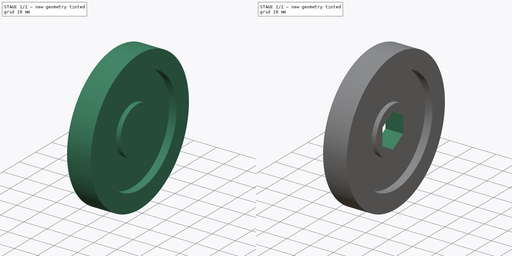
[diagram: build sequence overview — one tinted view per stage of 2, left to right]
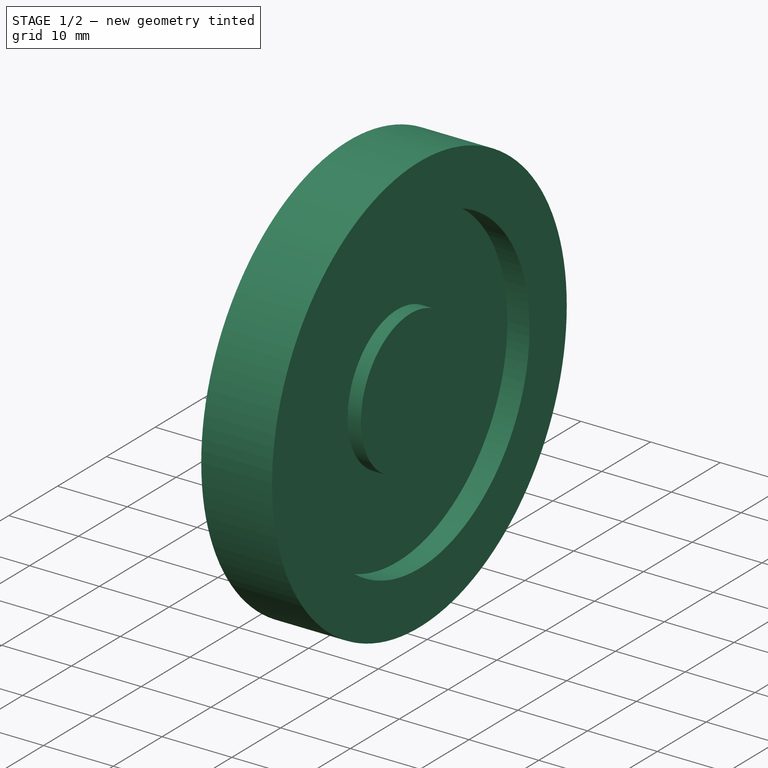
[diagram: stage 1 of 2 — iso view after this stage's code; geometry added in this stage tinted green]
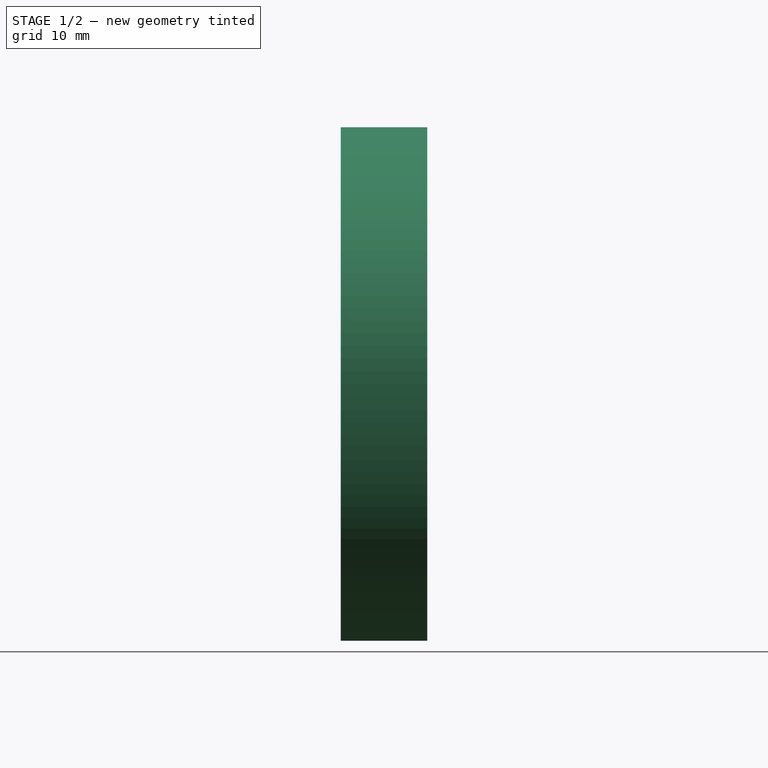
[diagram: stage 1 of 2 — front view after this stage's code; geometry added in this stage tinted green]
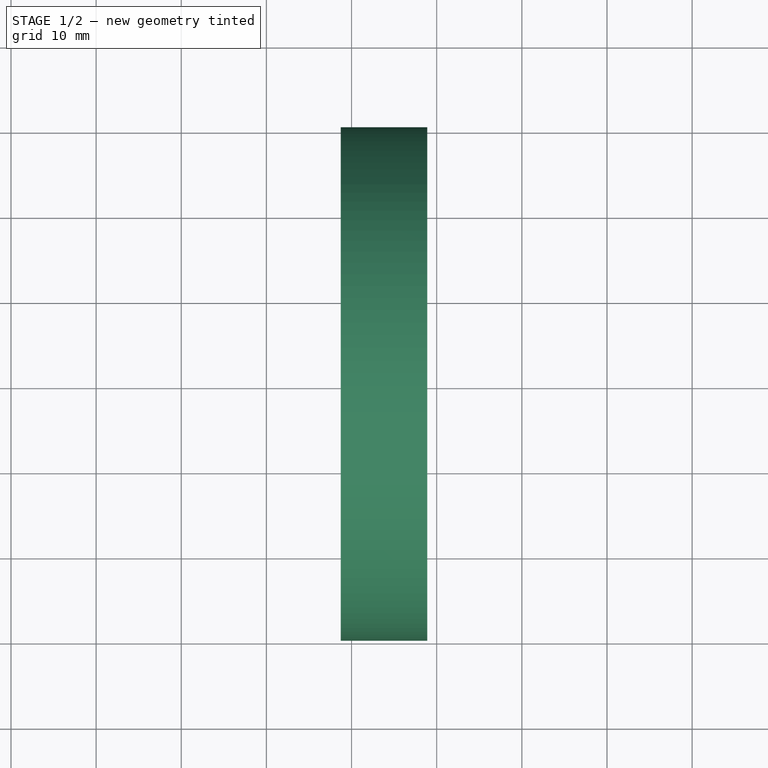
[diagram: stage 1 of 2 — top view after this stage's code; geometry added in this stage tinted green]
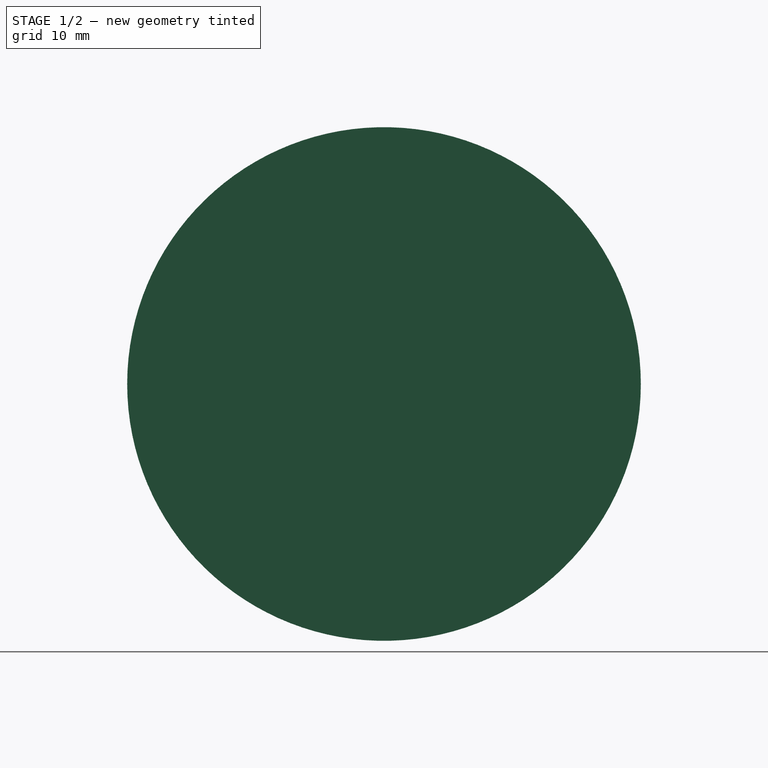
[diagram: stage 1 of 2 — right view after this stage's code; geometry added in this stage tinted green]
FCSTD DOCUMENT  (FreeCAD 0.17RUnknown)
Label: T40P-243BG-HS4
License: All rights reserved
LicenseURL: http://en.wikipedia.org/wiki/All_rights_reserved
objects: Sketcher::SketchObject×2, PartDesign::Revolution×1, PartDesign::Pocket×1, PartDesign::Body×1
note: 7 computed .brp shape members not serialized (recipe doc carries the construction recipe); baked Part::Feature solids carry a one-line shape summary decoded from their .brp

FEATURE [Sketcher::SketchObject] Sketch
  MapMode = 5
  Support = -> [XY_Plane]
  sketch-geometry (12):
    g0: LineSegment StartX=0 StartY=0 StartZ=0 EndX=0 EndY=10.16 EndZ=0
    g1: LineSegment StartX=0 StartY=10.16 StartZ=0 EndX=1.905 EndY=10.16 EndZ=0
    g2: LineSegment StartX=1.905 StartY=10.16 StartZ=0 EndX=1.905 EndY=22.5425 EndZ=0
    g3: LineSegment StartX=1.905 StartY=22.5425 StartZ=0 EndX=-1.27 EndY=22.5425 EndZ=0
    g4: LineSegment StartX=-1.27 StartY=22.5425 StartZ=0 EndX=-1.27 EndY=30.1625 EndZ=0
    g5: LineSegment StartX=-1.27 StartY=30.1625 StartZ=0 EndX=8.89 EndY=30.1625 EndZ=0
    g6: LineSegment StartX=8.89 StartY=30.1625 StartZ=0 EndX=8.89 EndY=22.5425 EndZ=0
    g7: LineSegment StartX=8.89 StartY=22.5425 StartZ=0 EndX=5.715 EndY=22.5425 EndZ=0
    g8: LineSegment StartX=5.715 StartY=22.5425 StartZ=0 EndX=5.715 EndY=10.16 EndZ=0
    g9: LineSegment StartX=5.715 StartY=10.16 StartZ=0 EndX=7.62 EndY=10.16 EndZ=0
    g10: LineSegment StartX=7.62 StartY=10.16 StartZ=0 EndX=7.62 EndY=0 EndZ=0
    g11: LineSegment StartX=7.62 StartY=0 StartZ=0 EndX=0 EndY=0 EndZ=0
  constraints (35):
    c: Coincident(g-1,g0)
    c: Coincident(g0,g1)
    c: Coincident(g1,g2)
    c: Vertical(g2)
    c: Coincident(g2,g3)
    c: Coincident(g3,g4)
    c: Coincident(g4,g5)
    c: Horizontal(g5)
    c: Coincident(g5,g6)
    c: Vertical(g6)
    c: Coincident(g6,g7)
    c: Coincident(g7,g8)
    c: Vertical(g8)
    c: Coincident(g8,g9)
    c: Coincident(g9,g10)
    c: Coincident(g10,g11)
    c: Coincident(g11,g0)
    c: Horizontal(g11)
    c: DistanceY(g0,g0) = 10.16
    c: Equal(g10,g0)
    c: Horizontal(g1)
    c: Vertical(g0)
    c: DistanceY(g-1,g4) = 30.1625
    c: Horizontal(g3)
    c: DistanceY(g-1,g3) = 22.5425
    c: Horizontal(g9)
    c: Horizontal(g7)
    c: Equal(g2,g8)
    c: Vertical(g10)
    c: Equal(g9,g1)
    c: DistanceX(g5,g5) = 10.16
    c: DistanceX(g2,g7) = 3.81
    c: DistanceX(g11,g11) = 7.62
    c: Vertical(g4)
    c: Equal(g3,g7)
FEATURE [PartDesign::Revolution] Revolution
  Angle = 360
  Axis = (1,0,0)
  Base = (0,0,0)
  Profile = -> Sketch
  ReferenceAxis = -> Sketch [H_Axis]
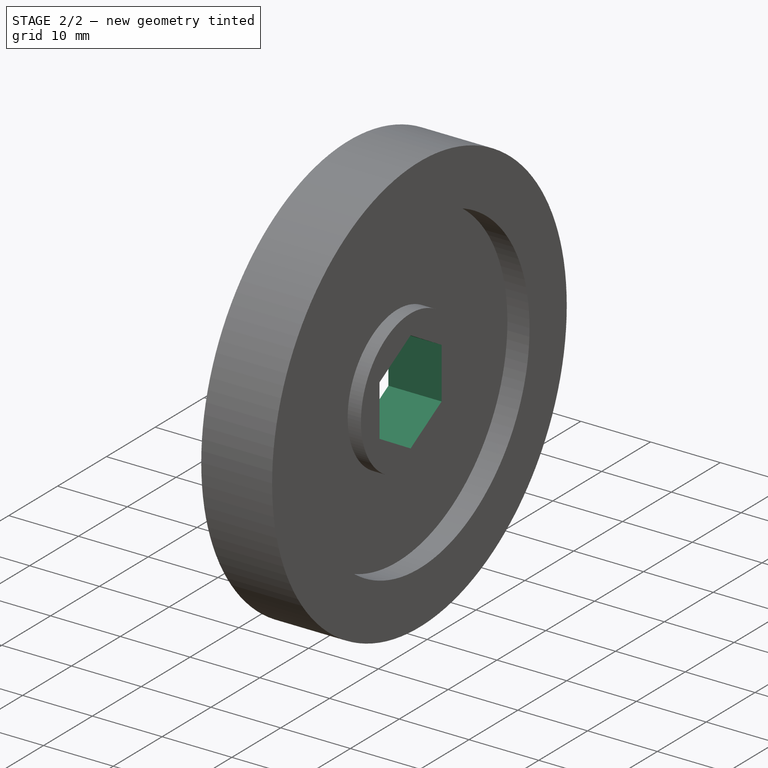
[diagram: stage 2 of 2 — iso view after this stage's code; geometry added in this stage tinted green]
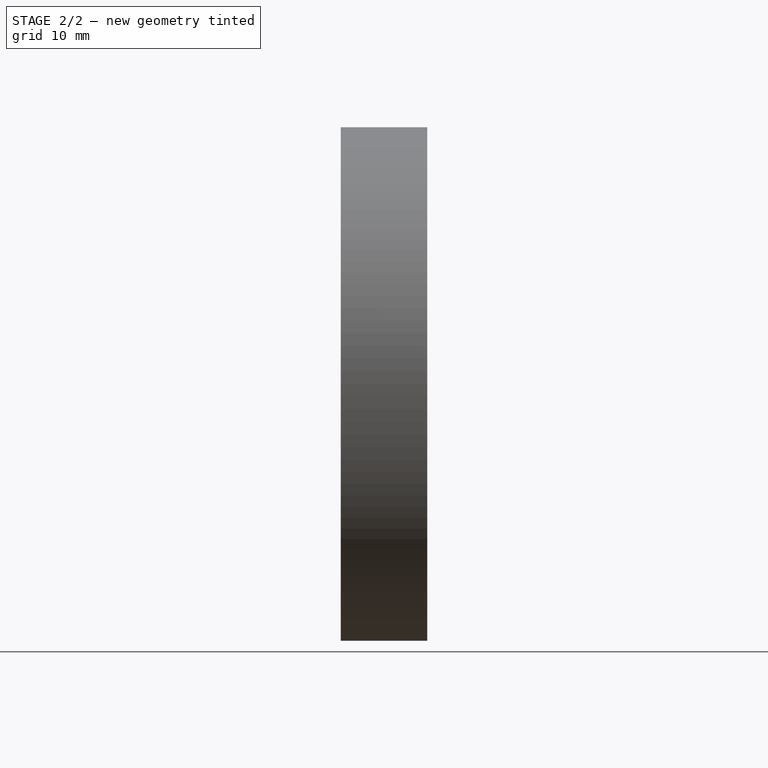
[diagram: stage 2 of 2 — front view after this stage's code; geometry added in this stage tinted green]
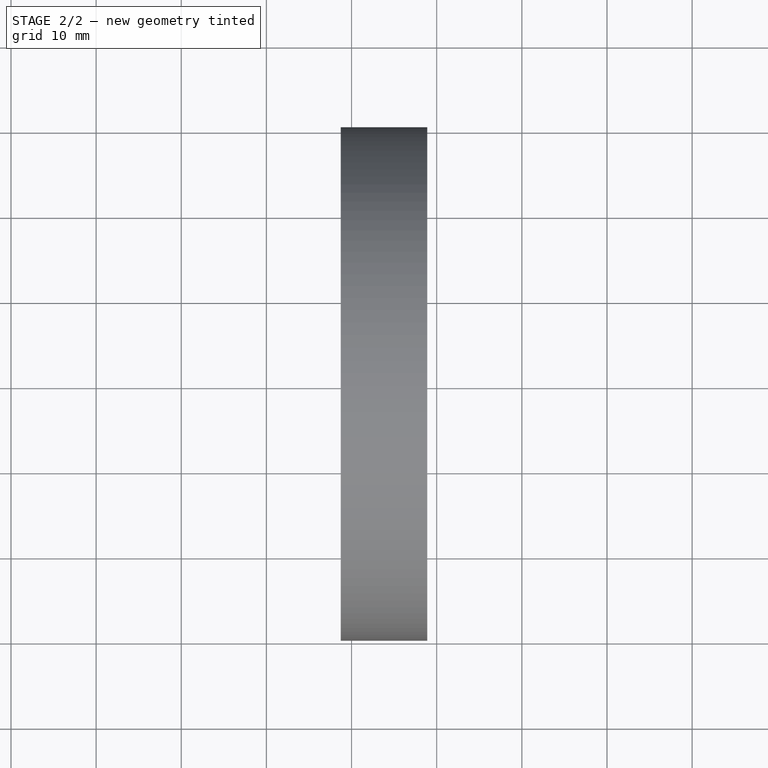
[diagram: stage 2 of 2 — top view after this stage's code; geometry added in this stage tinted green]
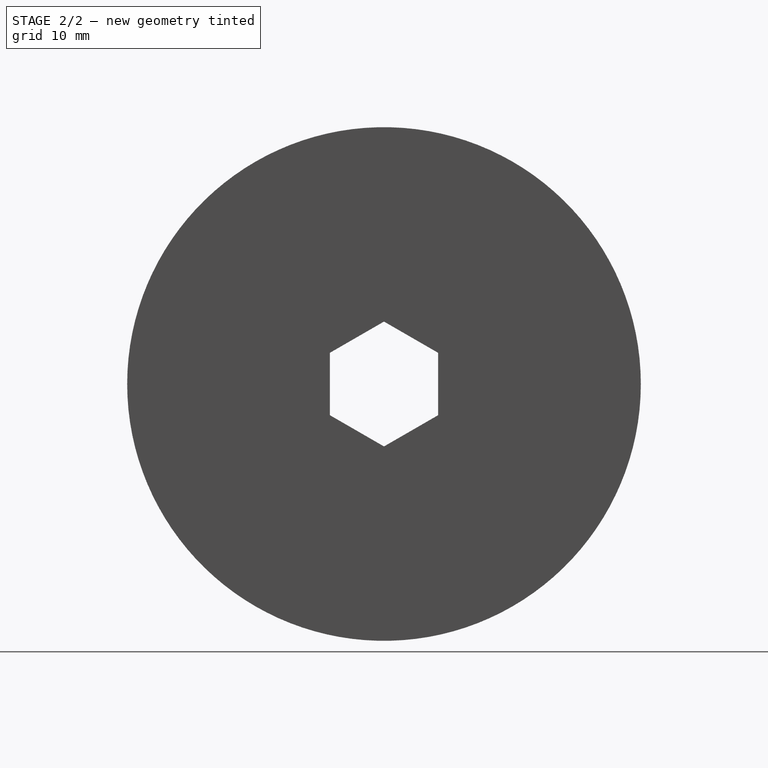
[diagram: stage 2 of 2 — right view after this stage's code; geometry added in this stage tinted green]
FEATURE [Sketcher::SketchObject] Sketch001
  MapMode = 5
  Placement = pos=(0,0,0) rot=(0.57735,-0.57735,-0.57735;2.0944rad)
  Support = -> [Revolution]
  sketch-geometry (9):
    g0: LineSegment StartX=0 StartY=7.33235 StartZ=0 EndX=-6.35 EndY=3.66617 EndZ=0
    g1: LineSegment StartX=-6.35 StartY=3.66617 StartZ=0 EndX=-6.35 EndY=-3.66617 EndZ=0
    g2: LineSegment StartX=-6.35 StartY=-3.66617 StartZ=0 EndX=0 EndY=-7.33235 EndZ=0
    g3: LineSegment StartX=0 StartY=-7.33235 StartZ=0 EndX=6.35 EndY=-3.66617 EndZ=0
    g4: LineSegment StartX=6.35 StartY=-3.66617 StartZ=0 EndX=6.35 EndY=3.66617 EndZ=0
    g5: LineSegment StartX=6.35 StartY=3.66617 StartZ=0 EndX=0 EndY=7.33235 EndZ=0
    g6: LineSegment [constr] StartX=-6.35 StartY=3.66617 StartZ=0 EndX=0 EndY=0 EndZ=0
    g7: LineSegment [constr] StartX=0 StartY=0 StartZ=0 EndX=-6.35 EndY=-3.66617 EndZ=0
    g8: LineSegment [constr] StartX=0 StartY=0 StartZ=0 EndX=0 EndY=7.33235 EndZ=0
  constraints (25):
    c: Coincident(g0,g1)
    c: Vertical(g1)
    c: Coincident(g1,g2)
    c: Coincident(g2,g3)
    c: Coincident(g3,g4)
    c: Coincident(g4,g5)
    c: Equal(g5,g4)
    c: Equal(g4,g3)
    c: Equal(g3,g2)
    c: Equal(g2,g1)
    c: Equal(g1,g0)
    c: Vertical(g4)
    c: Coincident(g5,g0)
    c: PointOnObject(g0,g-2)
    c: PointOnObject(g2,g-2)
    c: Coincident(g6,g0)
    c: Coincident(g6,g-1)
    c: Coincident(g7,g-1)
    c: Coincident(g7,g1)
    c: Equal(g7,g6)
    c: Coincident(g8,g0)
    c: Vertical(g8)
    c: Equal(g8,g6)
    c: Coincident(g8,g-1)
    c: Distance(g2,g4) = 12.7
FEATURE [PartDesign::Pocket] Pocket
  BaseFeature = -> Revolution
  Length = 5
  Length2 = 100
  Profile = -> Sketch001
  Type = 1
FEATURE [PartDesign::Body] Body
  Group = -> [Sketch,Revolution,Sketch001,Pocket]
  Origin = -> Origin
  Tip = -> Pocket
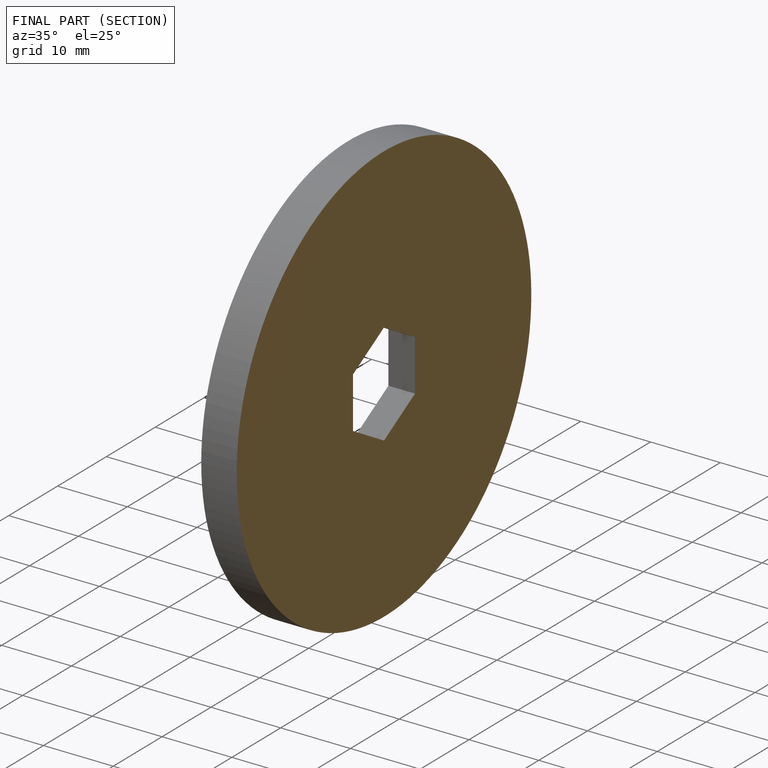
[diagram: finished part — half-section view (interior)]
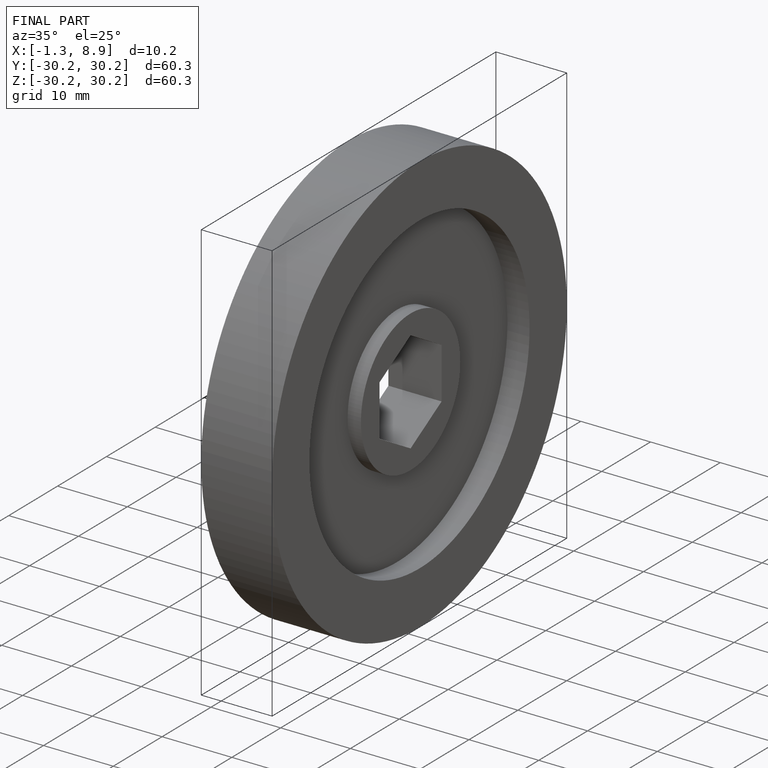
[diagram: finished part — iso view with bounding-box wireframe]
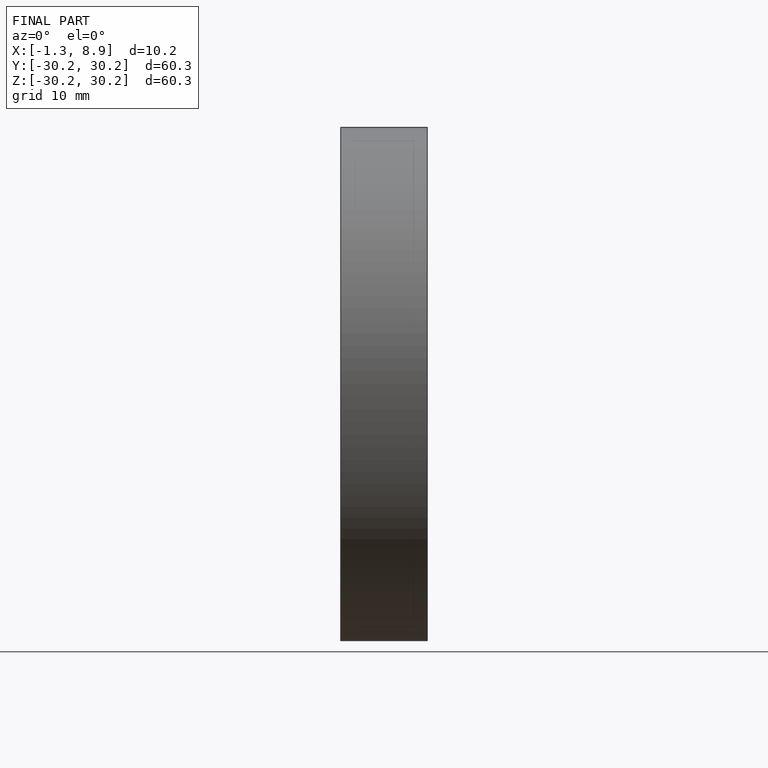
[diagram: finished part — front view with bounding-box wireframe]
